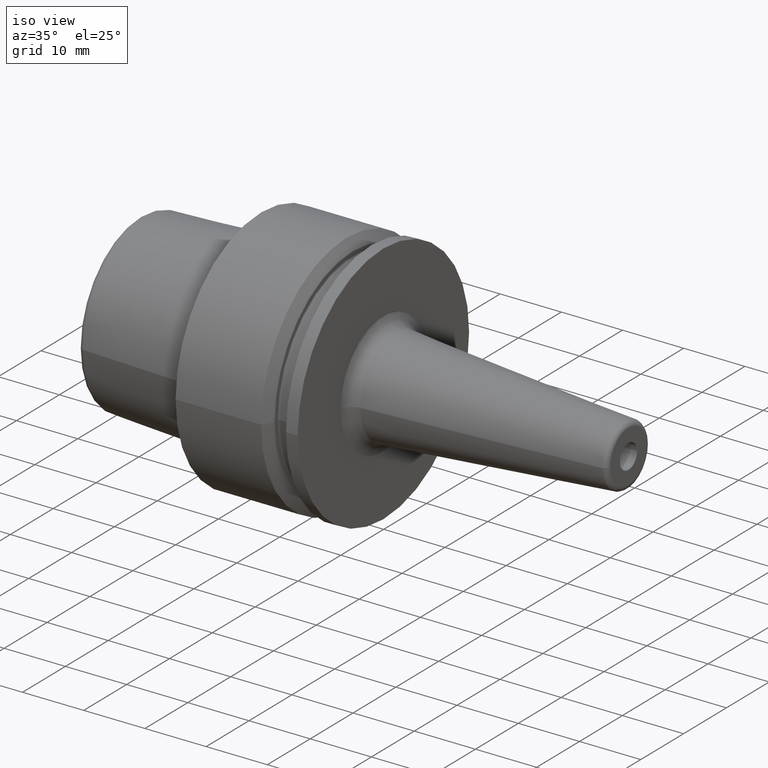
[diagram: clean part render]
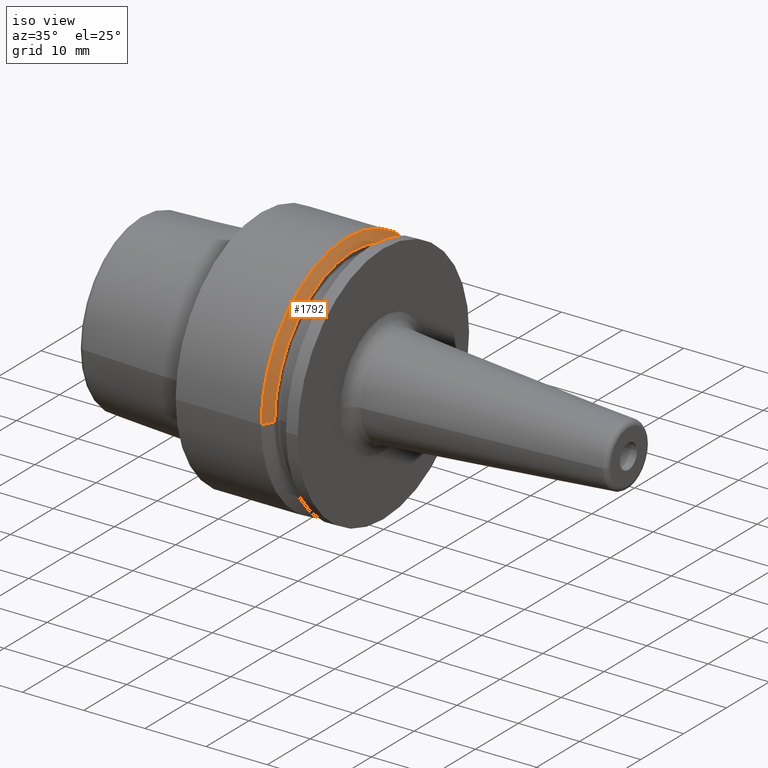
[diagram: same view with one face highlighted and labeled with its STEP entity id]
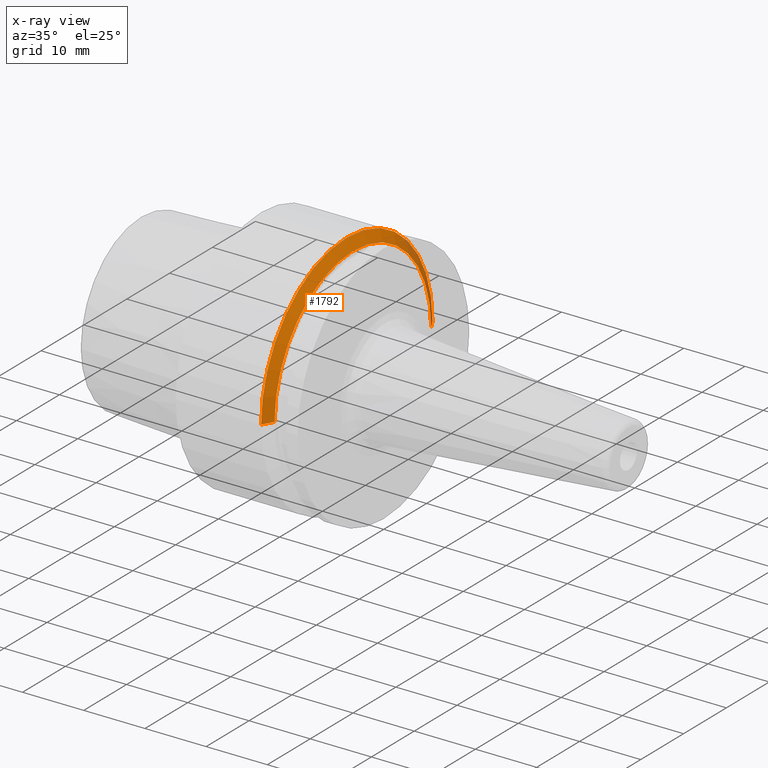
[diagram: x-ray of the same camera — body ghosted, the highlighted face saturated]
A machine part, iso view. The second image highlights one B-rep face of the part: STEP entity #1792.
The next image is the same camera in x-ray: the body ghosted, the highlighted face saturated — about 8% of this face is hidden behind the body in this view.
In plain terms, the highlighted conical surface has half-angle 60 deg.
Its self-contained STEP definition (entity closure, byte-faithful):
#482=CARTESIAN_POINT('',(1.396484030111E1,0.E0,0.E0));
#483=DIRECTION('',(1.E0,0.E0,0.E0));
#484=DIRECTION('',(0.E0,1.E0,0.E0));
#485=AXIS2_PLACEMENT_3D('',#482,#483,#484);
#578=CARTESIAN_POINT('',(1.49625E1,0.E0,0.E0));
#579=DIRECTION('',(1.E0,0.E0,0.E0));
#580=DIRECTION('',(0.E0,1.E0,0.E0));
#581=AXIS2_PLACEMENT_3D('',#578,#579,#580);
#583=DIRECTION('',(5.E-1,-8.660254037844E-1,0.E0));
#584=VECTOR('',#583,1.995319397787E0);
#585=CARTESIAN_POINT('',(1.396484030111E1,2.E1,0.E0));
#586=LINE('',#585,#584);
#587=DIRECTION('',(5.E-1,8.660254037844E-1,0.E0));
#588=VECTOR('',#587,1.995319397787E0);
#589=CARTESIAN_POINT('',(1.396484030111E1,-2.E1,0.E0));
#590=LINE('',#589,#588);
#774=CARTESIAN_POINT('',(1.49625E1,1.827200271285E1,0.E0));
#775=CARTESIAN_POINT('',(1.49625E1,-1.827200271285E1,0.E0));
#776=VERTEX_POINT('',#774);
#777=VERTEX_POINT('',#775);
#784=CARTESIAN_POINT('',(1.396484030111E1,2.E1,0.E0));
#785=VERTEX_POINT('',#784);
#788=CARTESIAN_POINT('',(1.396484030111E1,-2.E1,0.E0));
#789=VERTEX_POINT('',#788);
#1781=CARTESIAN_POINT('',(1.446367015055E1,0.E0,0.E0));
#1782=DIRECTION('',(-1.E0,0.E0,0.E0));
#1783=DIRECTION('',(0.E0,1.E0,0.E0));
#1784=AXIS2_PLACEMENT_3D('',#1781,#1782,#1783);
#1785=CONICAL_SURFACE('',#1784,1.913600135643E1,6.E1);
#1786=ORIENTED_EDGE('',*,*,#1771,.T.);
#1787=ORIENTED_EDGE('',*,*,#1757,.T.);
#1788=ORIENTED_EDGE('',*,*,#1775,.F.);
#1789=ORIENTED_EDGE('',*,*,#1611,.F.);
#1790=EDGE_LOOP('',(#1786,#1787,#1788,#1789));
#1791=FACE_OUTER_BOUND('',#1790,.F.);
#1792=ADVANCED_FACE('',(#1791),#1785,.T.);
#486=CIRCLE('',#485,2.E1);
#582=CIRCLE('',#581,1.827200271285E1);
#1611=EDGE_CURVE('',#785,#789,#486,.T.);
#1757=EDGE_CURVE('',#776,#777,#582,.T.);
#1771=EDGE_CURVE('',#785,#776,#586,.T.);
#1775=EDGE_CURVE('',#789,#777,#590,.T.);